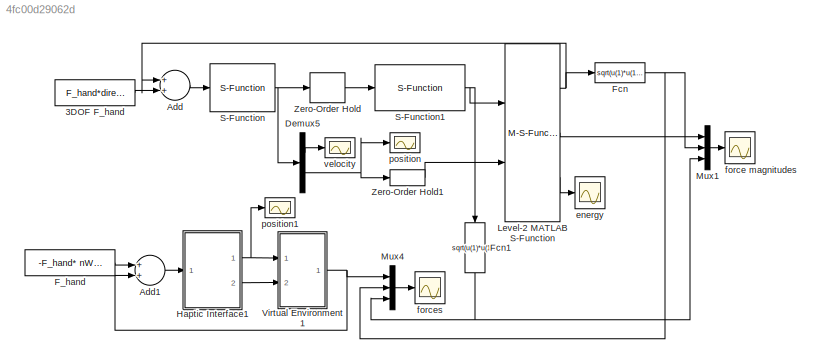
MODEL slx_4fc00d29062d
KIND model
CONFIG AbsTol = auto
CONFIG FixedStep = auto
CONFIG MaxStep = auto
CONFIG MinStep = auto
CONFIG RelTol = 1e-3
CONFIG SampleTimeConstraint = Unconstrained
CONFIG Solver = ode3
CONFIG SolverMode = Auto
CONFIG SolverName = ode3
CONFIG StartTime = 0.0
CONFIG StopTime = 40
BLOCK [Constant] 3DOF F_hand
  Value = F_hand*direction
BLOCK [Sum] Add
  InputSameDT = off
  OutDataTypeStr = Inherit: Inherit via internal rule
  Ports = [2, 1]
  SaturateOnIntegerOverflow = off
BLOCK [Sum] Add1
  InputSameDT = off
  OutDataTypeStr = Inherit: Inherit via internal rule
  Ports = [2, 1]
  SaturateOnIntegerOverflow = off
BLOCK [Demux] Demux5
  DisplayOption = bar
  Outputs = 2
  Ports = [1, 2]
BLOCK [Constant] F_hand
  Value = -F_hand* nWall
BLOCK [Fcn] Fcn
  Expr = sqrt(u(1)*u(1)+u(2)*u(2)+u(3)*u(3))
BLOCK [Fcn] Fcn1
  Expr = sqrt(u(1)*u(1)+u(2)*u(2)+u(3)*u(3))
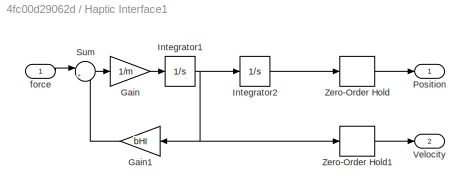
BLOCK [SubSystem] Haptic Interface1
  Ports = [1, 2]
  RequestExecContextInheritance = off
  Variant = off
BLOCK [Gain] Haptic Interface1/Gain
  Gain = 1/m
  OutDataTypeStr = Inherit: Inherit via internal rule
  ParamDataTypeStr = Inherit: Inherit via internal rule
  SaturateOnIntegerOverflow = off
BLOCK [Gain] Haptic Interface1/Gain1
  Gain = bHI
  OutDataTypeStr = Inherit: Inherit via internal rule
  ParamDataTypeStr = Inherit: Inherit via internal rule
  SaturateOnIntegerOverflow = off
BLOCK [Integrator] Haptic Interface1/Integrator1
  InitialCondition = v0(3)
  Ports = [1, 1]
BLOCK [Integrator] Haptic Interface1/Integrator2
  InitialCondition = p0(3)
  Ports = [1, 1]
BLOCK [Outport] Haptic Interface1/Position
  IconDisplay = Port number
BLOCK [Sum] Haptic Interface1/Sum
  IconShape = round
  InputSameDT = off
  Inputs = |+-
  OutDataTypeStr = Inherit: Inherit via internal rule
  Ports = [2, 1]
  SaturateOnIntegerOverflow = off
BLOCK [Outport] Haptic Interface1/Velocity
  IconDisplay = Port number
  Port = 2
BLOCK [ZeroOrderHold] Haptic Interface1/Zero-Order Hold
  SampleTime = tsampling
BLOCK [ZeroOrderHold] Haptic Interface1/Zero-Order Hold1
  SampleTime = tsampling
BLOCK [Inport] Haptic Interface1/force
  IconDisplay = Port number
BLOCK [M-S-Function] Level-2 MATLAB S-Function
  FunctionName = controller2
  Parameters = dof, bHI, tsampling, p0
  Ports = [2, 3]
BLOCK [Mux] Mux1
  DisplayOption = bar
  Inputs = 3
  Ports = [3, 1]
BLOCK [Mux] Mux4
  DisplayOption = bar
  Inputs = 3
  Ports = [3, 1]
BLOCK [S-Function] S-Function
  EnableBusSupport = off
  FunctionName = hapticdevice
  Parameters = m,bHI,v0,p0
  Ports = [1, 1]
  SFunctionDeploymentMode = off
BLOCK [S-Function] S-Function1
  EnableBusSupport = off
  FunctionName = virtualenvironment
  Parameters = kWall,bWall,xWall,cSphere
  Ports = [1, 1]
  SFunctionDeploymentMode = off
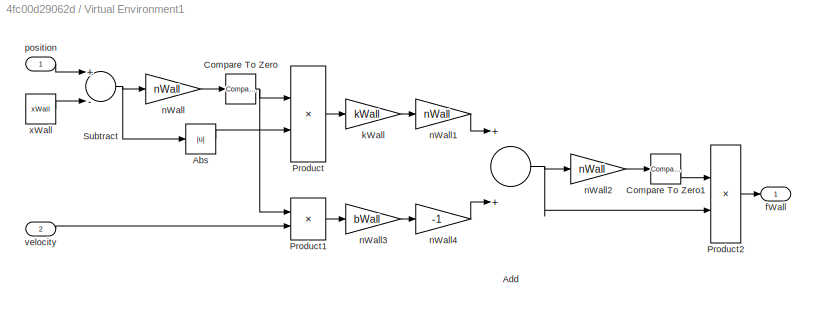
BLOCK [SubSystem] Virtual Environment1
  Ports = [2, 1]
  RequestExecContextInheritance = off
  Variant = off
BLOCK [Abs] Virtual Environment1/Abs
  SaturateOnIntegerOverflow = off
BLOCK [Sum] Virtual Environment1/Add
  InputSameDT = off
  OutDataTypeStr = Inherit: Inherit via internal rule
  Ports = [2, 1]
  SaturateOnIntegerOverflow = off
BLOCK [Reference] Virtual Environment1/Compare To Zero  REF=simulink/Logic and Bit
Operations/Compare
To Zero
  Ports = [1, 1]
  SourceBlock = simulink/Logic and Bit\nOperations/Compare\nTo Zero
  SourceType = Compare To Zero
BLOCK [Reference] Virtual Environment1/Compare To Zero1  REF=simulink/Logic and Bit
Operations/Compare
To Zero
  Ports = [1, 1]
  SourceBlock = simulink/Logic and Bit\nOperations/Compare\nTo Zero
  SourceType = Compare To Zero
BLOCK [Product] Virtual Environment1/Product
  InputSameDT = off
  OutDataTypeStr = Inherit: Inherit via internal rule
  Ports = [2, 1]
  RndMeth = Floor
  SaturateOnIntegerOverflow = off
BLOCK [Product] Virtual Environment1/Product1
  InputSameDT = off
  OutDataTypeStr = Inherit: Inherit via internal rule
  Ports = [2, 1]
  RndMeth = Floor
  SaturateOnIntegerOverflow = off
BLOCK [Product] Virtual Environment1/Product2
  InputSameDT = off
  OutDataTypeStr = Inherit: Inherit via internal rule
  Ports = [2, 1]
  RndMeth = Floor
  SaturateOnIntegerOverflow = off
BLOCK [Sum] Virtual Environment1/Subtract
  InputSameDT = off
  Inputs = +-
  OutDataTypeStr = Inherit: Inherit via internal rule
  Ports = [2, 1]
  SaturateOnIntegerOverflow = off
BLOCK [Outport] Virtual Environment1/fWall
  IconDisplay = Port number
BLOCK [Gain] Virtual Environment1/kWall
  Gain = kWall
  OutDataTypeStr = Inherit: Inherit via internal rule
  ParamDataTypeStr = Inherit: Inherit via internal rule
  SaturateOnIntegerOverflow = off
BLOCK [Gain] Virtual Environment1/nWall
  Gain = nWall
  OutDataTypeStr = Inherit: Inherit via internal rule
  ParamDataTypeStr = Inherit: Inherit via internal rule
  SaturateOnIntegerOverflow = off
BLOCK [Gain] Virtual Environment1/nWall1
  Gain = nWall
  OutDataTypeStr = Inherit: Inherit via internal rule
  ParamDataTypeStr = Inherit: Inherit via internal rule
  SaturateOnIntegerOverflow = off
BLOCK [Gain] Virtual Environment1/nWall2
  Gain = nWall
  OutDataTypeStr = Inherit: Inherit via internal rule
  ParamDataTypeStr = Inherit: Inherit via internal rule
  SaturateOnIntegerOverflow = off
BLOCK [Gain] Virtual Environment1/nWall3
  Gain = bWall
  OutDataTypeStr = Inherit: Inherit via internal rule
  ParamDataTypeStr = Inherit: Inherit via internal rule
  SaturateOnIntegerOverflow = off
BLOCK [Gain] Virtual Environment1/nWall4
  Gain = -1
  OutDataTypeStr = Inherit: Inherit via internal rule
  ParamDataTypeStr = Inherit: Inherit via internal rule
  SaturateOnIntegerOverflow = off
BLOCK [Inport] Virtual Environment1/position
  IconDisplay = Port number
BLOCK [Inport] Virtual Environment1/velocity
  IconDisplay = Port number
  Port = 2
BLOCK [Constant] Virtual Environment1/xWall
  Value = xWall
BLOCK [ZeroOrderHold] Zero-Order Hold
  SampleTime = tsampling
BLOCK [ZeroOrderHold] Zero-Order Hold1
  SampleTime = tsampling
BLOCK [Scope] energy
  Ports = [1]
  ScopeSpecificationString = C++SS(StrPVP('Location','[1, 95, 1281, 746]'),StrPVP('Open','off'),StrPVP('ZoomMode','xonly'),MxPVP('AxesTitles',24,'struct(''axes1'',''%<SignalLabel>'')'),MxPVP('ScopeGraphics',28,'struct(''FigureColor'',''[0.5 0.5 0.5]'',''AxesColor'',''[0 0 0]'',''AxesTickColor'',''[1 1 1]'',''LineColors'',''[1 1 0;1 0 1;0 1 1;1 0 0;0 1 0;0 0 1]'',''LineStyles'',''-|-|-|-|-|-'',''LineWidths'',''[0.5 0.5 0.5 0.5...<+258ch>
BLOCK [Scope] force magnitudes
  Ports = [1]
  ScopeSpecificationString = C++SS(StrPVP('Location','[1, 95, 1281, 746]'),StrPVP('Open','off'),StrPVP('ZoomMode','yonly'),MxPVP('AxesTitles',24,'struct(''axes1'',''%<SignalLabel>'')'),MxPVP('ScopeGraphics',28,'struct(''FigureColor'',''[0.5 0.5 0.5]'',''AxesColor'',''[0 0 0]'',''AxesTickColor'',''[1 1 1]'',''LineColors'',''[1 1 0;1 0 1;0 1 1;1 0 0;0 1 0;0 0 1]'',''LineStyles'',''-|-|-|-|-|-'',''LineWidths'',''[0.5 0.5 0.5 0.5...<+290ch>
BLOCK [Scope] forces
  Ports = [1]
  ScopeSpecificationString = C++SS(StrPVP('Location','[1, 85, 1281, 736]'),StrPVP('Open','off'),StrPVP('ZoomMode','xonly'),MxPVP('AxesTitles',24,'struct(''axes1'',''%<SignalLabel>'')'),MxPVP('ScopeGraphics',28,'struct(''FigureColor'',''[0.156862745098039 0.156862745098039 0.156862745098039]'',''AxesColor'',''[0 0 0]'',''AxesTickColor'',''[0.686274509803922 0.686274509803922 0.686274509803922]'',''LineColors'',''[1 1 0;1 0 1;0...<+377ch>
BLOCK [Scope] position
  Ports = [1]
  ScopeSpecificationString = Simulink.scopes.TimeScopeBlockCfg('CurrentConfiguration', extmgr.ConfigurationSet(extmgr.Configuration('Core','General UI',true),extmgr.Configuration('Core','Source UI',true),extmgr.Configuration('Sources','WiredSimulink',true,'DataLoggingVariableName','ScopeData3','DataLoggingSaveFormat','StructureWithTime','DataLoggingDecimation','1','DataLoggingDecimateData',true),extmgr.Configuration('Visuals'...<+2041ch>
BLOCK [Scope] position1
  Ports = [1]
  ScopeSpecificationString = C++SS(StrPVP('Location','[204, 160, 1086, 660]'),StrPVP('Open','off'),StrPVP('ZoomMode','yonly'),MxPVP('AxesTitles',24,'struct(''axes1'',''%<SignalLabel>'')'),MxPVP('ScopeGraphics',28,'struct(''FigureColor'',''[0.5 0.5 0.5]'',''AxesColor'',''[0 0 0]'',''AxesTickColor'',''[1 1 1]'',''LineColors'',''[1 1 0;1 0 1;0 1 1;1 0 0;0 1 0;0 0 1]'',''LineStyles'',''-|-|-|-|-|-'',''LineWidths'',''[0.5 0.5 0.5 ...<+288ch>
BLOCK [Scope] velocity
  Ports = [1]
  ScopeSpecificationString = C++SS(StrPVP('Location','[198, 226, 1080, 726]'),StrPVP('Open','off'),MxPVP('AxesTitles',24,'struct(''axes1'',''%<SignalLabel>'')'),MxPVP('ScopeGraphics',28,'struct(''FigureColor'',''[0.5 0.5 0.5]'',''AxesColor'',''[0 0 0]'',''AxesTickColor'',''[1 1 1]'',''LineColors'',''[1 1 0;1 0 1;0 1 1;1 0 0;0 1 0;0 0 1]'',''LineStyles'',''-|-|-|-|-|-'',''LineWidths'',''[0.5 0.5 0.5 0.5 0.5 0.5]'',''MarkerStyl...<+259ch>
LINE 3DOF F_hand:1 -> Add:2
LINE Add1:1 -> Haptic Interface1:1
LINE Add:1 -> S-Function:1
LINE Demux5:1 -> velocity:1
NET Demux5:2 -> Zero-Order Hold1:1, position:1
LINE F_hand:1 -> Add1:1
NET Fcn1:1 -> Mux1:3, Mux4:3
NET Fcn:1 -> Mux1:2, Mux4:2
LINE Haptic Interface1/Gain1:1 -> Haptic Interface1/Sum:2
LINE Haptic Interface1/Gain:1 -> Haptic Interface1/Integrator1:1
NET Haptic Interface1/Integrator1:1 -> Haptic Interface1/Gain1:1, Haptic Interface1/Integrator2:1, Haptic Interface1/Zero-Order Hold1:1
LINE Haptic Interface1/Integrator2:1 -> Haptic Interface1/Zero-Order Hold:1
LINE Haptic Interface1/Sum:1 -> Haptic Interface1/Gain:1
LINE Haptic Interface1/Zero-Order Hold1:1 -> Haptic Interface1/Velocity:1
LINE Haptic Interface1/Zero-Order Hold:1 -> Haptic Interface1/Position:1
LINE Haptic Interface1/force:1 -> Haptic Interface1/Sum:1
NET Haptic Interface1:1 -> Virtual Environment1:1, position1:1
LINE Haptic Interface1:2 -> Virtual Environment1:2
NET Level-2 MATLAB S-Function:1 -> Add:1, Fcn:1
LINE Level-2 MATLAB S-Function:2 -> Mux1:1
LINE Level-2 MATLAB S-Function:3 -> energy:1
LINE Mux1:1 -> force magnitudes:1
LINE Mux4:1 -> forces:1
NET S-Function1:1 -> Fcn1:1, Level-2 MATLAB S-Function:1
NET S-Function:1 -> Demux5:1, Zero-Order Hold:1
LINE Virtual Environment1/Abs:1 -> Virtual Environment1/Product:2
NET Virtual Environment1/Add:1 -> Virtual Environment1/Product2:2, Virtual Environment1/nWall2:1
LINE Virtual Environment1/Compare To Zero1:1 -> Virtual Environment1/Product2:1
NET Virtual Environment1/Compare To Zero:1 -> Virtual Environment1/Product1:1, Virtual Environment1/Product:1
LINE Virtual Environment1/Product1:1 -> Virtual Environment1/nWall3:1
LINE Virtual Environment1/Product2:1 -> Virtual Environment1/fWall:1
LINE Virtual Environment1/Product:1 -> Virtual Environment1/kWall:1
NET Virtual Environment1/Subtract:1 -> Virtual Environment1/Abs:1, Virtual Environment1/nWall:1
LINE Virtual Environment1/kWall:1 -> Virtual Environment1/nWall1:1
LINE Virtual Environment1/nWall1:1 -> Virtual Environment1/Add:1
LINE Virtual Environment1/nWall2:1 -> Virtual Environment1/Compare To Zero1:1
LINE Virtual Environment1/nWall3:1 -> Virtual Environment1/nWall4:1
LINE Virtual Environment1/nWall4:1 -> Virtual Environment1/Add:2
LINE Virtual Environment1/nWall:1 -> Virtual Environment1/Compare To Zero:1
LINE Virtual Environment1/position:1 -> Virtual Environment1/Subtract:1
LINE Virtual Environment1/velocity:1 -> Virtual Environment1/Product1:2
LINE Virtual Environment1/xWall:1 -> Virtual Environment1/Subtract:2
NET Virtual Environment1:1 -> Add1:2, Mux4:1
LINE Zero-Order Hold1:1 -> Level-2 MATLAB S-Function:2
LINE Zero-Order Hold:1 -> S-Function1:1
note: NET lines group one-source signal fan-out (src -> all destinations, sorted); 1:1 wires keep LINE
